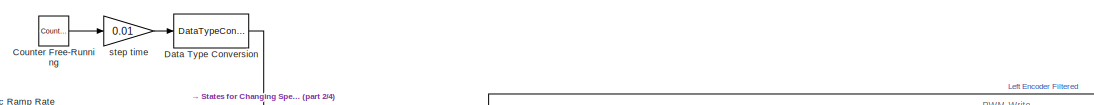
[diagram: root canvas - part 1/4, top right region]
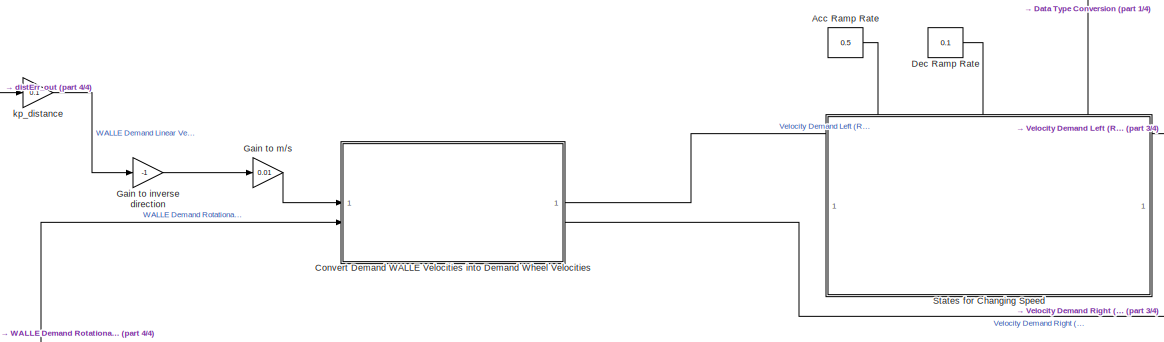
[diagram: root canvas - part 2/4, central region]
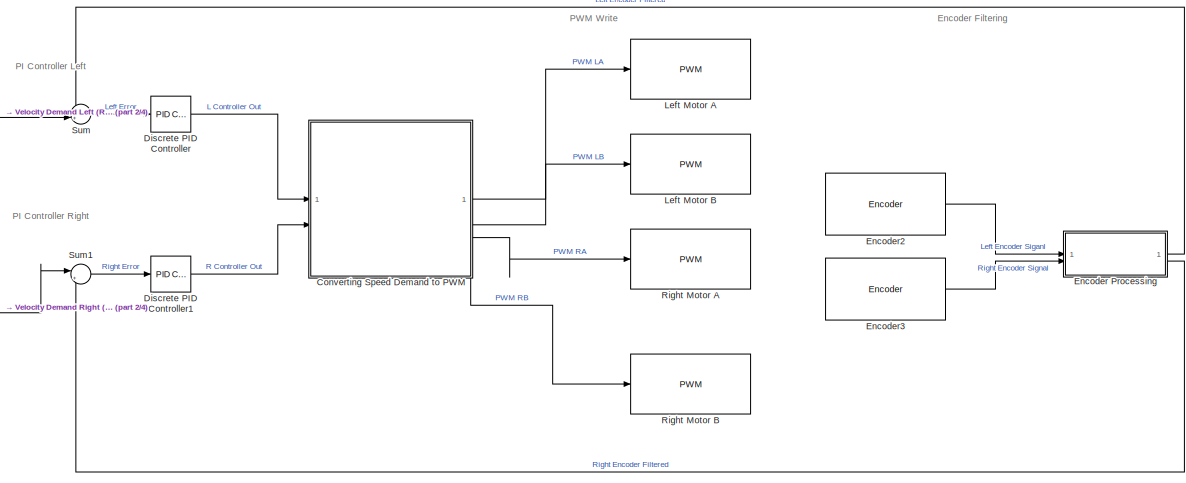
[diagram: root canvas - part 3/4, middle right region]
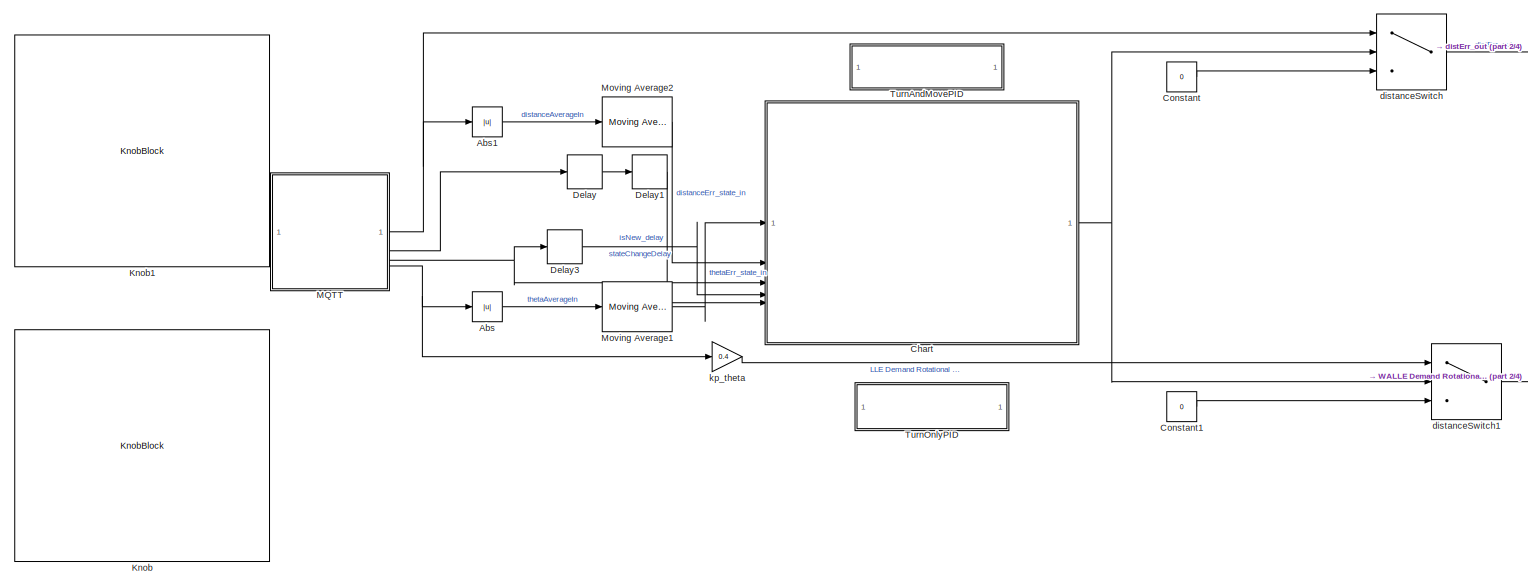
[diagram: root canvas - part 4/4, left side, full height]
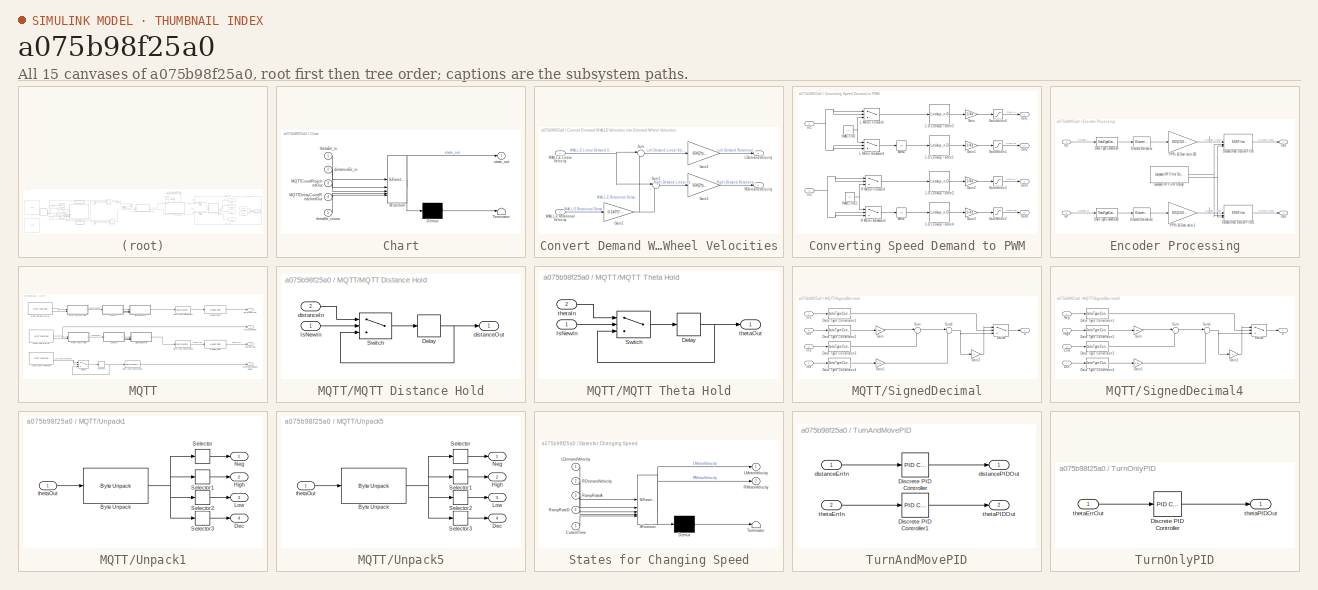
[diagram: thumbnail index - all 15 canvases of the model, root first then tree order]
MODEL slx_a075b98f25a0
KIND model
CONFIG AbsTol = auto
CONFIG EnableMultiTasking = on
CONFIG FixedStep = 0.01
CONFIG MaxStep = auto
CONFIG MinStep = auto
CONFIG RelTol = 1e-3
CONFIG SampleTimeConstraint = Unconstrained
CONFIG SolverName = FixedStepDiscrete
CONFIG StartTime = 0.0
CONFIG StopTime = inf
WORKSPACE source: mxarray member
WORKSPACE kp = 1
BLOCK [Abs] Abs
  SaturateOnIntegerOverflow = off
BLOCK [Abs] Abs1
  SaturateOnIntegerOverflow = off
BLOCK [Constant] Acc Ramp Rate
  OutDataTypeStr = single
  Value = 0.5
BLOCK [SubSystem] Chart
  ErrorFcn = Stateflow.Translate.translate
  PermitHierarchicalResolution = ExplicitOnly
  PortSchema = {"entries":[{"content":{"sides":[{"content":{"connectorIds":["In2","In5","In4","In3","In1"]},"type":"ConnectorPlacement.EquallySpacedRectSide","uuid":"3dab0a91-9335-4990-9001-e160d82c945d"},{"content":{"connectorIds":["Out1"],"side":"RIGHT"},"type":"ConnectorPlacement.EquallySpacedRectSide","uuid":"b7b74537-0e0f-4d24-ad6a-0417436d6279"},{"content":{"side":"TOP"},"type":"ConnectorPlacement.EquallyS...<+246ch>
  SFBlockType = Chart
  TreatAsAtomicUnit = on
BLOCK [Demux] Chart/ Demux 
  Outputs = 1
BLOCK [S-Function] Chart/ SFunction 
  EnableBusSupport = on
  FunctionName = sf_sfun
  PortCounts = [5 2]
  SFcnIsStateOwnerBlock = off
  SFunctionDeploymentMode = off
  Tag = Stateflow S-Function 1
BLOCK [Terminator] Chart/ Terminator 
BLOCK [Inport] Chart/MQTTCoordReachedOut
  Port = 3
BLOCK [Inport] Chart/MQTTDelayCoordReachedOut
  Port = 4
BLOCK [Inport] Chart/distanceErr_in
  Port = 2
BLOCK [Outport] Chart/state_out
BLOCK [Inport] Chart/thetaErr_in
BLOCK [Inport] Chart/thetaErr_isnew
  Port = 5
BLOCK [Constant] Constant
  Value = 0
BLOCK [Constant] Constant1
  Value = 0
BLOCK [SubSystem] Convert Demand WALLE Velocities into Demand Wheel Velocities
BLOCK [Gain] Convert Demand WALLE Velocities into Demand Wheel Velocities/Gain1
  Gain = 0.1475*pi/360
BLOCK [Gain] Convert Demand WALLE Velocities into Demand Wheel Velocities/Gain2
  Gain = 60/(2*pi*0.037)
BLOCK [Gain] Convert Demand WALLE Velocities into Demand Wheel Velocities/Gain3
  Gain = 60/(2*pi*0.037)
BLOCK [Outport] Convert Demand WALLE Velocities into Demand Wheel Velocities/LDemandVelocity
BLOCK [Outport] Convert Demand WALLE Velocities into Demand Wheel Velocities/RDemandVelocity
  Port = 2
BLOCK [Sum] Convert Demand WALLE Velocities into Demand Wheel Velocities/Sum
  Inputs = |+-
  OutDataTypeStr = single
BLOCK [Sum] Convert Demand WALLE Velocities into Demand Wheel Velocities/Sum1
  Inputs = |++
  OutDataTypeStr = single
BLOCK [Inport] Convert Demand WALLE Velocities into Demand Wheel Velocities/WALL-E Linear Velocity
BLOCK [Inport] Convert Demand WALLE Velocities into Demand Wheel Velocities/WALL-E Rotational Velocity
  Port = 2
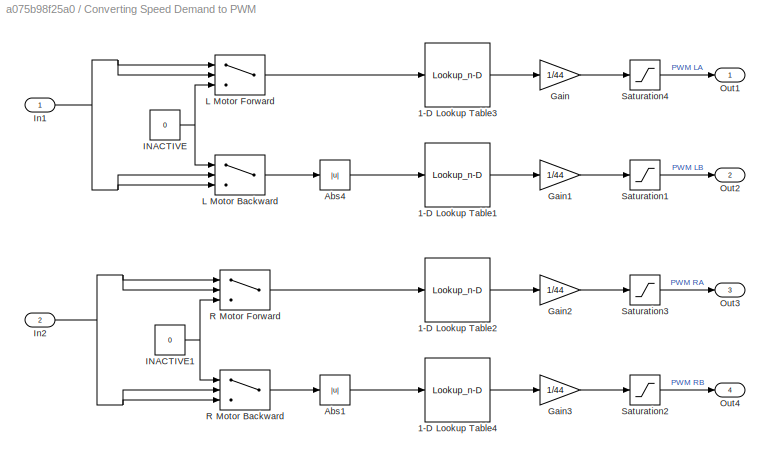
BLOCK [SubSystem] Converting Speed Demand to PWM
BLOCK [Lookup_n-D] Converting Speed Demand to PWM/1-D Lookup Table1
  BreakpointsForDimension1 = [0 2.1000000000000001 3.7000000000000002 5 10 15 20 25 30 35 40]
  InputPortMap = u0
  InternalRulePriority = Speed
  NumberOfTableDimensions = 1
  RndMeth = Simplest
  Table = [0 0 3.7000000000000002 3.7999999999999998 5 6 7 8 9 12 25]
BLOCK [Lookup_n-D] Converting Speed Demand to PWM/1-D Lookup Table2
  BreakpointsForDimension1 = [0 2.1000000000000001 3.7000000000000002 5 10 15 20 25 30 35 40]
  InputPortMap = u0
  InternalRulePriority = Speed
  NumberOfTableDimensions = 1
  RndMeth = Simplest
  Table = [0 0 3.7000000000000002 3.7999999999999998 5 6 7 8 9 12 25]
BLOCK [Lookup_n-D] Converting Speed Demand to PWM/1-D Lookup Table3
  BreakpointsForDimension1 = [0 2.1000000000000001 3.7000000000000002 5 10 15 20 25 30 35 40]
  InputPortMap = u0
  InternalRulePriority = Speed
  NumberOfTableDimensions = 1
  RndMeth = Simplest
  Table = [0 0 3.7000000000000002 3.7999999999999998 5 6 7 8 9 12 25]
BLOCK [Lookup_n-D] Converting Speed Demand to PWM/1-D Lookup Table4
  BreakpointsForDimension1 = [0 2.1000000000000001 3.7000000000000002 5 10 15 20 25 30 35 40]
  InputPortMap = u0
  InternalRulePriority = Speed
  NumberOfTableDimensions = 1
  RndMeth = Simplest
  Table = [0 0 3.7000000000000002 3.7999999999999998 5 6 7 8 9 12 25]
BLOCK [Abs] Converting Speed Demand to PWM/Abs1
  SaturateOnIntegerOverflow = off
BLOCK [Abs] Converting Speed Demand to PWM/Abs4
  SaturateOnIntegerOverflow = off
BLOCK [Gain] Converting Speed Demand to PWM/Gain
  Gain = 1/44
BLOCK [Gain] Converting Speed Demand to PWM/Gain1
  Gain = 1/44
BLOCK [Gain] Converting Speed Demand to PWM/Gain2
  Gain = 1/44
BLOCK [Gain] Converting Speed Demand to PWM/Gain3
  Gain = 1/44
BLOCK [Constant] Converting Speed Demand to PWM/INACTIVE
  Value = 0
BLOCK [Constant] Converting Speed Demand to PWM/INACTIVE1
  Value = 0
BLOCK [Inport] Converting Speed Demand to PWM/In1
BLOCK [Inport] Converting Speed Demand to PWM/In2
  Port = 2
BLOCK [Switch] Converting Speed Demand to PWM/L Motor Backward
  Criteria = u2 > Threshold
  InputSameDT = off
  SaturateOnIntegerOverflow = off
BLOCK [Switch] Converting Speed Demand to PWM/L Motor Forward
  Criteria = u2 > Threshold
  InputSameDT = off
  SaturateOnIntegerOverflow = off
BLOCK [Outport] Converting Speed Demand to PWM/Out1
BLOCK [Outport] Converting Speed Demand to PWM/Out2
  Port = 2
BLOCK [Outport] Converting Speed Demand to PWM/Out3
  Port = 3
BLOCK [Outport] Converting Speed Demand to PWM/Out4
  Port = 4
BLOCK [Switch] Converting Speed Demand to PWM/R Motor Backward
  Criteria = u2 > Threshold
  InputSameDT = off
  SaturateOnIntegerOverflow = off
BLOCK [Switch] Converting Speed Demand to PWM/R Motor Forward
  Criteria = u2 > Threshold
  InputSameDT = off
  SaturateOnIntegerOverflow = off
BLOCK [Saturate] Converting Speed Demand to PWM/Saturation1
  LowerLimit = 0
  UpperLimit = 1
BLOCK [Saturate] Converting Speed Demand to PWM/Saturation2
  LowerLimit = 0
  UpperLimit = 1
BLOCK [Saturate] Converting Speed Demand to PWM/Saturation3
  LowerLimit = 0
  UpperLimit = 1
BLOCK [Saturate] Converting Speed Demand to PWM/Saturation4
  LowerLimit = 0
  UpperLimit = 1
BLOCK [Reference] Counter Free-Running  REF=simulink/Sources/Counter
Free-Running
  SourceBlock = simulink/Sources/Counter\nFree-Running
  SourceType = Counter Free-Running
BLOCK [DataTypeConversion] Data Type Conversion
  OutDataTypeStr = single
  RndMeth = Floor
  SaturateOnIntegerOverflow = off
BLOCK [Constant] Dec Ramp Rate
  OutDataTypeStr = single
  Value = 0.1
BLOCK [Delay] Delay
  DelayLength = 15
  InitialCondition = 0
  InputPortMap = u0
BLOCK [Delay] Delay1
  DelayLength = 15
  InitialCondition = 0
  InputPortMap = u0
BLOCK [Delay] Delay3
  DelayLength = 50
  InitialCondition = 0
  InputPortMap = u0
BLOCK [Reference] Discrete PID Controller  REF=slpidlib/PID Controller
  LibrarySourceBlock = simulink/Discrete/Discrete PID Controller
  SourceBlock = slpidlib/PID Controller
  SourceType = PID 1dof
BLOCK [Reference] Discrete PID Controller1  REF=slpidlib/PID Controller
  LibrarySourceBlock = simulink/Discrete/Discrete PID Controller
  SourceBlock = slpidlib/PID Controller
  SourceType = PID 1dof
BLOCK [SubSystem] Encoder Processing
  NameLocation = right
BLOCK [DataTypeConversion] Encoder Processing/Data Type Conversion
  OutDataTypeStr = single
  RndMeth = Floor
  SaturateOnIntegerOverflow = off
BLOCK [DataTypeConversion] Encoder Processing/Data Type Conversion1
  OutDataTypeStr = single
  RndMeth = Floor
  SaturateOnIntegerOverflow = off
BLOCK [Reference] Encoder Processing/Discrete Derivative  REF=simulink/Discrete/Discrete Derivative
  SourceBlock = simulink/Discrete/Discrete Derivative
  SourceType = Discrete Derivative
BLOCK [Reference] Encoder Processing/Discrete Derivative1  REF=simulink/Discrete/Discrete Derivative
  SourceBlock = simulink/Discrete/Discrete Derivative
  SourceType = Discrete Derivative
BLOCK [Inport] Encoder Processing/In1
BLOCK [Inport] Encoder Processing/In2
  Port = 2
BLOCK [Reference] Encoder Processing/Lowpass IIR Filter Design  REF=dspfiltersrcs/Lowpass IIR Filter Design
  SourceBlock = dspfiltersrcs/Lowpass IIR Filter Design
  SourceType = dsp.simulink.LowpassIIRFilterDesign
BLOCK [Outport] Encoder Processing/Out1
BLOCK [Outport] Encoder Processing/Out2
  Port = 2
BLOCK [Gain] Encoder Processing/PPR=16 Gear ratio=1
  Gain = 60/(150*16)
  OutDataTypeStr = single
BLOCK [Gain] Encoder Processing/PPR=16 Gear ratio=150
  Gain = 60/(150*16)
  OutDataTypeStr = single
BLOCK [SOSFilter] Encoder Processing/Second-Order Section Filter
  CloseFcn = dspLinkFVTool2Mask(gcbh,'close')
  CoeffSource = Input ports
  CopyFcn = ud = get_param(gcbh,'UserData');\nif isfield(ud,'fvtool')\n  ud = rmfield(ud,'fvtool');\n  set_param(gcbh,'UserData',ud);\nend\nclear ud
  DeleteFcn = dspLinkFVTool2Mask(gcbh,'close')
  Denominator = a
  InputPortMap = u0,u1,u2
  LoadFcn = dspDeleteFVToolLinkFromMask(gcbh);
  ModelCloseFcn = dspLinkFVTool2Mask(gcbh,'close')
  Numerator = b
  OutputPortMap = o0
  PostSaveFcn = dspRestoreLinkFVTool2Mask(gcbh);
  PreSaveFcn = dspUnlinkFVToolFromMask(gcbh);
BLOCK [SOSFilter] Encoder Processing/Second-Order Section Filter1
  CloseFcn = dspLinkFVTool2Mask(gcbh,'close')
  CoeffSource = Input ports
  CopyFcn = ud = get_param(gcbh,'UserData');\nif isfield(ud,'fvtool')\n  ud = rmfield(ud,'fvtool');\n  set_param(gcbh,'UserData',ud);\nend\nclear ud
  DeleteFcn = dspLinkFVTool2Mask(gcbh,'close')
  Denominator = a
  InputPortMap = u0,u1,u2
  LoadFcn = dspDeleteFVToolLinkFromMask(gcbh);
  ModelCloseFcn = dspLinkFVTool2Mask(gcbh,'close')
  Numerator = b
  OutputPortMap = o0
  PostSaveFcn = dspRestoreLinkFVTool2Mask(gcbh);
  PreSaveFcn = dspUnlinkFVToolFromMask(gcbh);
BLOCK [Reference] Encoder2  REF=raspberrypiBasiclib/Encoder
  SourceBlock = raspberrypiBasiclib/Encoder
  SourceType = codertarget.raspi.internal.RotaryEncoder
BLOCK [Reference] Encoder3  REF=raspberrypiBasiclib/Encoder
  SourceBlock = raspberrypiBasiclib/Encoder
  SourceType = codertarget.raspi.internal.RotaryEncoder
BLOCK [Gain] Gain to inverse direction
  Gain = -1
BLOCK [Gain] Gain to m//s
  Gain = 0.01
BLOCK [KnobBlock] Knob
  ScaleMax = 0.8
  ScaleMin = 0.4
  ScaleType = Log
BLOCK [KnobBlock] Knob1
  ScaleMax = 1
BLOCK [Reference] Left Motor A  REF=raspberrypiBasiclib/PWM
  SourceBlock = raspberrypiBasiclib/PWM
  SourceType = raspi.internal.PWMBlock
BLOCK [Reference] Left Motor B  REF=raspberrypiBasiclib/PWM
  SourceBlock = raspberrypiBasiclib/PWM
  SourceType = raspi.internal.PWMBlock
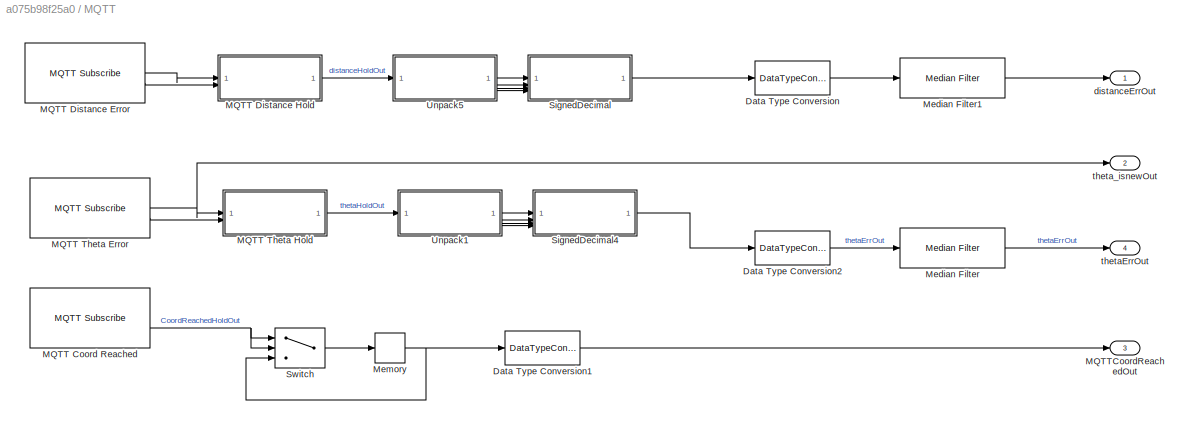
BLOCK [SubSystem] MQTT
BLOCK [DataTypeConversion] MQTT/Data Type Conversion
  OutDataTypeStr = single
  RndMeth = Floor
  SaturateOnIntegerOverflow = off
BLOCK [DataTypeConversion] MQTT/Data Type Conversion1
  OutDataTypeStr = single
  RndMeth = Floor
  SaturateOnIntegerOverflow = off
BLOCK [DataTypeConversion] MQTT/Data Type Conversion2
  OutDataTypeStr = single
  RndMeth = Floor
  SaturateOnIntegerOverflow = off
BLOCK [Reference] MQTT/MQTT Coord Reached  REF=raspberrypiIOTlib/MQTT Subscribe
  SourceBlock = raspberrypiIOTlib/MQTT Subscribe
  SourceType = codertarget.raspi.internal.RaspiMQTTSubscribe
BLOCK [Reference] MQTT/MQTT Distance Error  REF=raspberrypiIOTlib/MQTT Subscribe
  SourceBlock = raspberrypiIOTlib/MQTT Subscribe
  SourceType = codertarget.raspi.internal.RaspiMQTTSubscribe
BLOCK [SubSystem] MQTT/MQTT Distance Hold
BLOCK [Delay] MQTT/MQTT Distance Hold/Delay
  DelayLength = 20
  InitialCondition = 0
  InputPortMap = u0
BLOCK [Inport] MQTT/MQTT Distance Hold/IsNewIn
BLOCK [Switch] MQTT/MQTT Distance Hold/Switch
  Criteria = u2 > Threshold
  InputSameDT = off
  SaturateOnIntegerOverflow = off
BLOCK [Inport] MQTT/MQTT Distance Hold/distanceIn
  Port = 2
BLOCK [Outport] MQTT/MQTT Distance Hold/distanceOut
BLOCK [Reference] MQTT/MQTT Theta Error  REF=raspberrypiIOTlib/MQTT Subscribe
  SourceBlock = raspberrypiIOTlib/MQTT Subscribe
  SourceType = codertarget.raspi.internal.RaspiMQTTSubscribe
BLOCK [SubSystem] MQTT/MQTT Theta Hold
BLOCK [Delay] MQTT/MQTT Theta Hold/Delay
  DelayLength = 20
  InitialCondition = 0
  InputPortMap = u0
BLOCK [Inport] MQTT/MQTT Theta Hold/IsNewIn
BLOCK [Switch] MQTT/MQTT Theta Hold/Switch
  Criteria = u2 > Threshold
  InputSameDT = off
  SaturateOnIntegerOverflow = off
BLOCK [Inport] MQTT/MQTT Theta Hold/thetaIn
  Port = 2
BLOCK [Outport] MQTT/MQTT Theta Hold/thetaOut
BLOCK [Outport] MQTT/MQTTCoordReachedOut
  Port = 3
BLOCK [Reference] MQTT/Median Filter  REF=dspstat3/Median
Filter
  LibrarySourceBlock = dspfdesign/Median\nFilter
  SourceBlock = dspstat3/Median\nFilter
  SourceType = dsp.simulink.MedianFilter
BLOCK [Reference] MQTT/Median Filter1  REF=dspstat3/Median
Filter
  LibrarySourceBlock = dspfdesign/Median\nFilter
  SourceBlock = dspstat3/Median\nFilter
  SourceType = dsp.simulink.MedianFilter
BLOCK [Memory] MQTT/Memory
  InheritSampleTime = on
BLOCK [SubSystem] MQTT/SignedDecimal
BLOCK [DataTypeConversion] MQTT/SignedDecimal/Data Type Conversion1
  OutDataTypeStr = single
  RndMeth = Floor
  SaturateOnIntegerOverflow = off
BLOCK [DataTypeConversion] MQTT/SignedDecimal/Data Type Conversion2
  OutDataTypeStr = single
  RndMeth = Floor
  SaturateOnIntegerOverflow = off
BLOCK [DataTypeConversion] MQTT/SignedDecimal/Data Type Conversion3
  OutDataTypeStr = single
  RndMeth = Floor
  SaturateOnIntegerOverflow = off
BLOCK [DataTypeConversion] MQTT/SignedDecimal/Data Type Conversion4
  OutDataTypeStr = single
  RndMeth = Floor
  SaturateOnIntegerOverflow = off
BLOCK [Gain] MQTT/SignedDecimal/Gain
  Gain = 100
BLOCK [Gain] MQTT/SignedDecimal/Gain1
  Gain = 0.01
BLOCK [Gain] MQTT/SignedDecimal/Gain2
  Gain = -1
BLOCK [Inport] MQTT/SignedDecimal/In1
BLOCK [Inport] MQTT/SignedDecimal/In2
  Port = 2
BLOCK [Inport] MQTT/SignedDecimal/In3
  Port = 3
BLOCK [Inport] MQTT/SignedDecimal/In4
  Port = 4
BLOCK [Sum] MQTT/SignedDecimal/Sum
  Inputs = |++
BLOCK [Sum] MQTT/SignedDecimal/Sum1
  Inputs = |++
BLOCK [Switch] MQTT/SignedDecimal/Switch
  Criteria = u2 > Threshold
  InputSameDT = off
  SaturateOnIntegerOverflow = off
BLOCK [Outport] MQTT/SignedDecimal/u
BLOCK [SubSystem] MQTT/SignedDecimal4
BLOCK [DataTypeConversion] MQTT/SignedDecimal4/Data Type Conversion1
  OutDataTypeStr = single
  RndMeth = Floor
  SaturateOnIntegerOverflow = off
BLOCK [DataTypeConversion] MQTT/SignedDecimal4/Data Type Conversion2
  OutDataTypeStr = single
  RndMeth = Floor
  SaturateOnIntegerOverflow = off
BLOCK [DataTypeConversion] MQTT/SignedDecimal4/Data Type Conversion3
  OutDataTypeStr = single
  RndMeth = Floor
  SaturateOnIntegerOverflow = off
BLOCK [DataTypeConversion] MQTT/SignedDecimal4/Data Type Conversion4
  OutDataTypeStr = single
  RndMeth = Floor
  SaturateOnIntegerOverflow = off
BLOCK [Inport] MQTT/SignedDecimal4/Dec
  Port = 4
BLOCK [Gain] MQTT/SignedDecimal4/Gain
  Gain = 100
BLOCK [Gain] MQTT/SignedDecimal4/Gain1
  Gain = 0.01
BLOCK [Gain] MQTT/SignedDecimal4/Gain2
  Gain = -1
BLOCK [Inport] MQTT/SignedDecimal4/High
  Port = 2
BLOCK [Inport] MQTT/SignedDecimal4/Low
  Port = 3
BLOCK [Inport] MQTT/SignedDecimal4/Neg
BLOCK [Sum] MQTT/SignedDecimal4/Sum
  Inputs = |++
BLOCK [Sum] MQTT/SignedDecimal4/Sum1
  Inputs = |++
BLOCK [Switch] MQTT/SignedDecimal4/Switch
  Criteria = u2 > Threshold
  InputSameDT = off
  SaturateOnIntegerOverflow = off
BLOCK [Outport] MQTT/SignedDecimal4/u
BLOCK [Switch] MQTT/Switch
  Criteria = u2 ~= 0
  InputSameDT = off
  SaturateOnIntegerOverflow = off
BLOCK [SubSystem] MQTT/Unpack1
BLOCK [Reference] MQTT/Unpack1/Byte Unpack  REF=etargetslib/Byte Unpack
  SourceBlock = etargetslib/Byte Unpack
  SourceType = Byte Unpack
BLOCK [Outport] MQTT/Unpack1/Dec
  Port = 4
BLOCK [Outport] MQTT/Unpack1/High
  Port = 2
BLOCK [Outport] MQTT/Unpack1/Low
  Port = 3
BLOCK [Outport] MQTT/Unpack1/Neg
BLOCK [Selector] MQTT/Unpack1/Selector
  IndexOptions = Index vector (dialog)
  Indices = [1]
  InputPortWidth = 4
  OutputSizes = 1
BLOCK [Selector] MQTT/Unpack1/Selector1
  IndexOptions = Index vector (dialog)
  Indices = [2]
  InputPortWidth = 4
  OutputSizes = 1
BLOCK [Selector] MQTT/Unpack1/Selector2
  IndexOptions = Index vector (dialog)
  Indices = [3]
  InputPortWidth = 4
  OutputSizes = 1
BLOCK [Selector] MQTT/Unpack1/Selector3
  IndexOptions = Index vector (dialog)
  Indices = [4]
  InputPortWidth = 4
  OutputSizes = 1
BLOCK [Inport] MQTT/Unpack1/thetaOut
BLOCK [SubSystem] MQTT/Unpack5
BLOCK [Reference] MQTT/Unpack5/Byte Unpack  REF=etargetslib/Byte Unpack
  SourceBlock = etargetslib/Byte Unpack
  SourceType = Byte Unpack
BLOCK [Outport] MQTT/Unpack5/Dec
  Port = 4
BLOCK [Outport] MQTT/Unpack5/High
  Port = 2
BLOCK [Outport] MQTT/Unpack5/Low
  Port = 3
BLOCK [Outport] MQTT/Unpack5/Neg
BLOCK [Selector] MQTT/Unpack5/Selector
  IndexOptions = Index vector (dialog)
  Indices = [1]
  InputPortWidth = 4
  OutputSizes = 1
BLOCK [Selector] MQTT/Unpack5/Selector1
  IndexOptions = Index vector (dialog)
  Indices = [2]
  InputPortWidth = 4
  OutputSizes = 1
BLOCK [Selector] MQTT/Unpack5/Selector2
  IndexOptions = Index vector (dialog)
  Indices = [3]
  InputPortWidth = 4
  OutputSizes = 1
BLOCK [Selector] MQTT/Unpack5/Selector3
  IndexOptions = Index vector (dialog)
  Indices = [4]
  InputPortWidth = 4
  OutputSizes = 1
BLOCK [Inport] MQTT/Unpack5/thetaOut
BLOCK [Outport] MQTT/distanceErrOut
BLOCK [Outport] MQTT/thetaErrOut
  Port = 4
BLOCK [Outport] MQTT/theta_isnewOut
  Port = 2
BLOCK [Reference] Moving Average1  REF=eeGeneralControl/Moving Average
  LibrarySourceBlock = ee_sl_lib/General Control/Moving Average
  SourceBlock = eeGeneralControl/Moving Average
  SourceType = Moving Average
BLOCK [Reference] Moving Average2  REF=eeGeneralControl/Moving Average
  LibrarySourceBlock = ee_sl_lib/General Control/Moving Average
  SourceBlock = eeGeneralControl/Moving Average
  SourceType = Moving Average
BLOCK [Reference] Right Motor A  REF=raspberrypiBasiclib/PWM
  SourceBlock = raspberrypiBasiclib/PWM
  SourceType = raspi.internal.PWMBlock
BLOCK [Reference] Right Motor B  REF=raspberrypiBasiclib/PWM
  SourceBlock = raspberrypiBasiclib/PWM
  SourceType = raspi.internal.PWMBlock
BLOCK [SubSystem] States for Changing Speed
  ErrorFcn = Stateflow.Translate.translate
  PermitHierarchicalResolution = ExplicitOnly
  PortSchema = {"entries":[{"content":{"sides":[{"content":{"connectorIds":["In1","In2"]},"type":"ConnectorPlacement.EquallySpacedRectSide","uuid":"29566149-d476-48be-bb8d-fc9ab2ff4a55"},{"content":{"connectorIds":["Out1","Out2"],"side":"RIGHT"},"type":"ConnectorPlacement.EquallySpacedRectSide","uuid":"f908ad7a-2ba5-4204-8f83-b7448630d8f9"},{"content":{"connectorIds":["In3","In4","In5"],"side":"TOP"},"type":"Con...<+270ch>
  SFBlockType = Chart
  TreatAsAtomicUnit = on
BLOCK [Demux] States for Changing Speed/ Demux 
  Outputs = 1
BLOCK [S-Function] States for Changing Speed/ SFunction 
  EnableBusSupport = on
  FunctionName = sf_sfun
  PortCounts = [5 3]
  SFcnIsStateOwnerBlock = off
  SFunctionDeploymentMode = off
  Tag = Stateflow S-Function 3
BLOCK [Terminator] States for Changing Speed/ Terminator 
BLOCK [Inport] States for Changing Speed/CurrentTime
  Port = 5
BLOCK [Inport] States for Changing Speed/LDemandVelocity
BLOCK [Outport] States for Changing Speed/LMotorVelocity
BLOCK [Inport] States for Changing Speed/RDemandVelocity
  Port = 2
BLOCK [Outport] States for Changing Speed/RMotorVelocity
  Port = 2
BLOCK [Inport] States for Changing Speed/RampRateA
  Port = 3
BLOCK [Inport] States for Changing Speed/RampRateD
  Port = 4
BLOCK [Sum] Sum
  Inputs = -+|
BLOCK [Sum] Sum1
  Inputs = |+-
BLOCK [SubSystem] TurnAndMovePID
BLOCK [Reference] TurnAndMovePID/Discrete PID Controller  REF=slpidlib/PID Controller
  SourceBlock = slpidlib/PID Controller
  SourceType = PID 1dof
BLOCK [Reference] TurnAndMovePID/Discrete PID Controller1  REF=slpidlib/PID Controller
  SourceBlock = slpidlib/PID Controller
  SourceType = PID 1dof
BLOCK [Inport] TurnAndMovePID/distanceErrIn
BLOCK [Outport] TurnAndMovePID/distancePIDOut
BLOCK [Inport] TurnAndMovePID/thetaErrIn
  Port = 2
BLOCK [Outport] TurnAndMovePID/thetaPIDOut
  Port = 2
BLOCK [SubSystem] TurnOnlyPID
BLOCK [Reference] TurnOnlyPID/Discrete PID Controller  REF=slpidlib/PID Controller
  LibrarySourceBlock = simulink/Discrete/Discrete PID Controller
  SourceBlock = slpidlib/PID Controller
  SourceType = PID 1dof
BLOCK [Inport] TurnOnlyPID/thetaErrOut
BLOCK [Outport] TurnOnlyPID/thetaPIDOut
BLOCK [Switch] distanceSwitch
  Criteria = u2 > Threshold
  InputSameDT = off
  SaturateOnIntegerOverflow = off
BLOCK [Switch] distanceSwitch1
  Criteria = u2 ~= 0
  InputSameDT = off
  SaturateOnIntegerOverflow = off
BLOCK [Gain] kp_distance
  Gain = 0.1
BLOCK [Gain] kp_theta
  Gain = 0.4
BLOCK [Gain] step time
  Gain = 0.01
ANNOTATION (root): Encoder Filtering
ANNOTATION (root): PI Controller Left
ANNOTATION (root): PI Controller Right
ANNOTATION (root): PWM Write
LINE Abs1:1 -> Moving Average2:1
LINE Abs:1 -> Moving Average1:1
LINE Acc Ramp Rate:1 -> States for Changing Speed:3
NET Chart:1 -> distanceSwitch1:2, distanceSwitch:2
LINE Constant1:1 -> distanceSwitch1:3
LINE Constant:1 -> distanceSwitch:3
NET Convert Demand WALLE Velocities into Demand Wheel Velocities/Gain1:1 -> Convert Demand WALLE Velocities into Demand Wheel Velocities/Sum1:2, Convert Demand WALLE Velocities into Demand Wheel Velocities/Sum:2
LINE Convert Demand WALLE Velocities into Demand Wheel Velocities/Gain2:1 -> Convert Demand WALLE Velocities into Demand Wheel Velocities/LDemandVelocity:1
LINE Convert Demand WALLE Velocities into Demand Wheel Velocities/Gain3:1 -> Convert Demand WALLE Velocities into Demand Wheel Velocities/RDemandVelocity:1
LINE Convert Demand WALLE Velocities into Demand Wheel Velocities/Sum1:1 -> Convert Demand WALLE Velocities into Demand Wheel Velocities/Gain3:1
LINE Convert Demand WALLE Velocities into Demand Wheel Velocities/Sum:1 -> Convert Demand WALLE Velocities into Demand Wheel Velocities/Gain2:1
NET Convert Demand WALLE Velocities into Demand Wheel Velocities/WALL-E Linear Velocity:1 -> Convert Demand WALLE Velocities into Demand Wheel Velocities/Sum1:1, Convert Demand WALLE Velocities into Demand Wheel Velocities/Sum:1
LINE Convert Demand WALLE Velocities into Demand Wheel Velocities/WALL-E Rotational Velocity:1 -> Convert Demand WALLE Velocities into Demand Wheel Velocities/Gain1:1
LINE Convert Demand WALLE Velocities into Demand Wheel Velocities:1 -> Sum:2
LINE Convert Demand WALLE Velocities into Demand Wheel Velocities:2 -> Sum1:1
LINE Converting Speed Demand to PWM/1-D Lookup Table1:1 -> Converting Speed Demand to PWM/Gain1:1
LINE Converting Speed Demand to PWM/1-D Lookup Table2:1 -> Converting Speed Demand to PWM/Gain2:1
LINE Converting Speed Demand to PWM/1-D Lookup Table3:1 -> Converting Speed Demand to PWM/Gain:1
LINE Converting Speed Demand to PWM/1-D Lookup Table4:1 -> Converting Speed Demand to PWM/Gain3:1
LINE Converting Speed Demand to PWM/Abs1:1 -> Converting Speed Demand to PWM/1-D Lookup Table4:1
LINE Converting Speed Demand to PWM/Abs4:1 -> Converting Speed Demand to PWM/1-D Lookup Table1:1
LINE Converting Speed Demand to PWM/Gain1:1 -> Converting Speed Demand to PWM/Saturation1:1
LINE Converting Speed Demand to PWM/Gain2:1 -> Converting Speed Demand to PWM/Saturation3:1
LINE Converting Speed Demand to PWM/Gain3:1 -> Converting Speed Demand to PWM/Saturation2:1
LINE Converting Speed Demand to PWM/Gain:1 -> Converting Speed Demand to PWM/Saturation4:1
NET Converting Speed Demand to PWM/INACTIVE1:1 -> Converting Speed Demand to PWM/R Motor Backward:1, Converting Speed Demand to PWM/R Motor Forward:3
NET Converting Speed Demand to PWM/INACTIVE:1 -> Converting Speed Demand to PWM/L Motor Backward:1, Converting Speed Demand to PWM/L Motor Forward:3
NET Converting Speed Demand to PWM/In1:1 -> Converting Speed Demand to PWM/L Motor Backward:2, Converting Speed Demand to PWM/L Motor Backward:3, Converting Speed Demand to PWM/L Motor Forward:1, Converting Speed Demand to PWM/L Motor Forward:2
NET Converting Speed Demand to PWM/In2:1 -> Converting Speed Demand to PWM/R Motor Backward:2, Converting Speed Demand to PWM/R Motor Backward:3, Converting Speed Demand to PWM/R Motor Forward:1, Converting Speed Demand to PWM/R Motor Forward:2
LINE Converting Speed Demand to PWM/L Motor Backward:1 -> Converting Speed Demand to PWM/Abs4:1
LINE Converting Speed Demand to PWM/L Motor Forward:1 -> Converting Speed Demand to PWM/1-D Lookup Table3:1
LINE Converting Speed Demand to PWM/R Motor Backward:1 -> Converting Speed Demand to PWM/Abs1:1
LINE Converting Speed Demand to PWM/R Motor Forward:1 -> Converting Speed Demand to PWM/1-D Lookup Table2:1
LINE Converting Speed Demand to PWM/Saturation1:1 -> Converting Speed Demand to PWM/Out2:1
LINE Converting Speed Demand to PWM/Saturation2:1 -> Converting Speed Demand to PWM/Out4:1
LINE Converting Speed Demand to PWM/Saturation3:1 -> Converting Speed Demand to PWM/Out3:1
LINE Converting Speed Demand to PWM/Saturation4:1 -> Converting Speed Demand to PWM/Out1:1
LINE Converting Speed Demand to PWM:1 -> Left Motor A:1
LINE Converting Speed Demand to PWM:2 -> Left Motor B:1
LINE Converting Speed Demand to PWM:3 -> Right Motor A:1
LINE Converting Speed Demand to PWM:4 -> Right Motor B:1
LINE Counter Free-Running:1 -> step time:1
LINE Data Type Conversion:1 -> States for Changing Speed:5
LINE Dec Ramp Rate:1 -> States for Changing Speed:4
LINE Delay1:1 -> Chart:5
LINE Delay3:1 -> Chart:4
LINE Delay:1 -> Delay1:1
LINE Discrete PID Controller1:1 -> Converting Speed Demand to PWM:2
LINE Discrete PID Controller:1 -> Converting Speed Demand to PWM:1
LINE Encoder Processing/Data Type Conversion1:1 -> Encoder Processing/Discrete Derivative1:1
LINE Encoder Processing/Data Type Conversion:1 -> Encoder Processing/Discrete Derivative:1
LINE Encoder Processing/Discrete Derivative1:1 -> Encoder Processing/PPR=16 Gear ratio=1:1
LINE Encoder Processing/Discrete Derivative:1 -> Encoder Processing/PPR=16 Gear ratio=150:1
LINE Encoder Processing/In1:1 -> Encoder Processing/Data Type Conversion:1
LINE Encoder Processing/In2:1 -> Encoder Processing/Data Type Conversion1:1
NET Encoder Processing/Lowpass IIR Filter Design:1 -> Encoder Processing/Second-Order Section Filter1:2, Encoder Processing/Second-Order Section Filter:2
NET Encoder Processing/Lowpass IIR Filter Design:2 -> Encoder Processing/Second-Order Section Filter1:3, Encoder Processing/Second-Order Section Filter:3
LINE Encoder Processing/PPR=16 Gear ratio=150:1 -> Encoder Processing/Second-Order Section Filter:1
LINE Encoder Processing/PPR=16 Gear ratio=1:1 -> Encoder Processing/Second-Order Section Filter1:1
LINE Encoder Processing/Second-Order Section Filter1:1 -> Encoder Processing/Out2:1
LINE Encoder Processing/Second-Order Section Filter:1 -> Encoder Processing/Out1:1
LINE Encoder Processing:1 -> Sum:1
LINE Encoder Processing:2 -> Sum1:2
LINE Encoder2:1 -> Encoder Processing:1
LINE Encoder3:1 -> Encoder Processing:2
LINE Gain to inverse direction:1 -> Gain to m//s:1
LINE Gain to m//s:1 -> Convert Demand WALLE Velocities into Demand Wheel Velocities:1
LINE MQTT/Data Type Conversion1:1 -> MQTT/MQTTCoordReachedOut:1
LINE MQTT/Data Type Conversion2:1 -> MQTT/Median Filter:1
LINE MQTT/Data Type Conversion:1 -> MQTT/Median Filter1:1
NET MQTT/MQTT Coord Reached:2 -> MQTT/Switch:1, MQTT/Switch:2
LINE MQTT/MQTT Distance Error:1 -> MQTT/MQTT Distance Hold:1
LINE MQTT/MQTT Distance Error:2 -> MQTT/MQTT Distance Hold:2
NET MQTT/MQTT Distance Hold/Delay:1 -> MQTT/MQTT Distance Hold/Switch:3, MQTT/MQTT Distance Hold/distanceOut:1
LINE MQTT/MQTT Distance Hold/IsNewIn:1 -> MQTT/MQTT Distance Hold/Switch:2
LINE MQTT/MQTT Distance Hold/Switch:1 -> MQTT/MQTT Distance Hold/Delay:1
LINE MQTT/MQTT Distance Hold/distanceIn:1 -> MQTT/MQTT Distance Hold/Switch:1
LINE MQTT/MQTT Distance Hold:1 -> MQTT/Unpack5:1
NET MQTT/MQTT Theta Error:1 -> MQTT/MQTT Theta Hold:1, MQTT/theta_isnewOut:1
LINE MQTT/MQTT Theta Error:2 -> MQTT/MQTT Theta Hold:2
NET MQTT/MQTT Theta Hold/Delay:1 -> MQTT/MQTT Theta Hold/Switch:3, MQTT/MQTT Theta Hold/thetaOut:1
LINE MQTT/MQTT Theta Hold/IsNewIn:1 -> MQTT/MQTT Theta Hold/Switch:2
LINE MQTT/MQTT Theta Hold/Switch:1 -> MQTT/MQTT Theta Hold/Delay:1
LINE MQTT/MQTT Theta Hold/thetaIn:1 -> MQTT/MQTT Theta Hold/Switch:1
LINE MQTT/MQTT Theta Hold:1 -> MQTT/Unpack1:1
LINE MQTT/Median Filter1:1 -> MQTT/distanceErrOut:1
LINE MQTT/Median Filter:1 -> MQTT/thetaErrOut:1
NET MQTT/Memory:1 -> MQTT/Data Type Conversion1:1, MQTT/Switch:3
LINE MQTT/SignedDecimal/Data Type Conversion1:1 -> MQTT/SignedDecimal/Switch:2
LINE MQTT/SignedDecimal/Data Type Conversion2:1 -> MQTT/SignedDecimal/Gain:1
LINE MQTT/SignedDecimal/Data Type Conversion3:1 -> MQTT/SignedDecimal/Sum:2
LINE MQTT/SignedDecimal/Data Type Conversion4:1 -> MQTT/SignedDecimal/Gain1:1
LINE MQTT/SignedDecimal/Gain1:1 -> MQTT/SignedDecimal/Sum1:2
LINE MQTT/SignedDecimal/Gain2:1 -> MQTT/SignedDecimal/Switch:1
LINE MQTT/SignedDecimal/Gain:1 -> MQTT/SignedDecimal/Sum:1
LINE MQTT/SignedDecimal/In1:1 -> MQTT/SignedDecimal/Data Type Conversion1:1
LINE MQTT/SignedDecimal/In2:1 -> MQTT/SignedDecimal/Data Type Conversion2:1
LINE MQTT/SignedDecimal/In3:1 -> MQTT/SignedDecimal/Data Type Conversion3:1
LINE MQTT/SignedDecimal/In4:1 -> MQTT/SignedDecimal/Data Type Conversion4:1
NET MQTT/SignedDecimal/Sum1:1 -> MQTT/SignedDecimal/Gain2:1, MQTT/SignedDecimal/Switch:3
LINE MQTT/SignedDecimal/Sum:1 -> MQTT/SignedDecimal/Sum1:1
LINE MQTT/SignedDecimal/Switch:1 -> MQTT/SignedDecimal/u:1
LINE MQTT/SignedDecimal4/Data Type Conversion1:1 -> MQTT/SignedDecimal4/Switch:2
LINE MQTT/SignedDecimal4/Data Type Conversion2:1 -> MQTT/SignedDecimal4/Gain:1
LINE MQTT/SignedDecimal4/Data Type Conversion3:1 -> MQTT/SignedDecimal4/Sum:2
LINE MQTT/SignedDecimal4/Data Type Conversion4:1 -> MQTT/SignedDecimal4/Gain1:1
LINE MQTT/SignedDecimal4/Dec:1 -> MQTT/SignedDecimal4/Data Type Conversion4:1
LINE MQTT/SignedDecimal4/Gain1:1 -> MQTT/SignedDecimal4/Sum1:2
LINE MQTT/SignedDecimal4/Gain2:1 -> MQTT/SignedDecimal4/Switch:1
LINE MQTT/SignedDecimal4/Gain:1 -> MQTT/SignedDecimal4/Sum:1
LINE MQTT/SignedDecimal4/High:1 -> MQTT/SignedDecimal4/Data Type Conversion2:1
LINE MQTT/SignedDecimal4/Low:1 -> MQTT/SignedDecimal4/Data Type Conversion3:1
LINE MQTT/SignedDecimal4/Neg:1 -> MQTT/SignedDecimal4/Data Type Conversion1:1
NET MQTT/SignedDecimal4/Sum1:1 -> MQTT/SignedDecimal4/Gain2:1, MQTT/SignedDecimal4/Switch:3
LINE MQTT/SignedDecimal4/Sum:1 -> MQTT/SignedDecimal4/Sum1:1
LINE MQTT/SignedDecimal4/Switch:1 -> MQTT/SignedDecimal4/u:1
LINE MQTT/SignedDecimal4:1 -> MQTT/Data Type Conversion2:1
LINE MQTT/SignedDecimal:1 -> MQTT/Data Type Conversion:1
LINE MQTT/Switch:1 -> MQTT/Memory:1
NET MQTT/Unpack1/Byte Unpack:1 -> MQTT/Unpack1/Selector1:1, MQTT/Unpack1/Selector2:1, MQTT/Unpack1/Selector3:1, MQTT/Unpack1/Selector:1
LINE MQTT/Unpack1/Selector1:1 -> MQTT/Unpack1/High:1
LINE MQTT/Unpack1/Selector2:1 -> MQTT/Unpack1/Low:1
LINE MQTT/Unpack1/Selector3:1 -> MQTT/Unpack1/Dec:1
LINE MQTT/Unpack1/Selector:1 -> MQTT/Unpack1/Neg:1
LINE MQTT/Unpack1/thetaOut:1 -> MQTT/Unpack1/Byte Unpack:1
LINE MQTT/Unpack1:1 -> MQTT/SignedDecimal4:1
LINE MQTT/Unpack1:2 -> MQTT/SignedDecimal4:2
LINE MQTT/Unpack1:3 -> MQTT/SignedDecimal4:3
LINE MQTT/Unpack1:4 -> MQTT/SignedDecimal4:4
NET MQTT/Unpack5/Byte Unpack:1 -> MQTT/Unpack5/Selector1:1, MQTT/Unpack5/Selector2:1, MQTT/Unpack5/Selector3:1, MQTT/Unpack5/Selector:1
LINE MQTT/Unpack5/Selector1:1 -> MQTT/Unpack5/High:1
LINE MQTT/Unpack5/Selector2:1 -> MQTT/Unpack5/Low:1
LINE MQTT/Unpack5/Selector3:1 -> MQTT/Unpack5/Dec:1
LINE MQTT/Unpack5/Selector:1 -> MQTT/Unpack5/Neg:1
LINE MQTT/Unpack5/thetaOut:1 -> MQTT/Unpack5/Byte Unpack:1
LINE MQTT/Unpack5:1 -> MQTT/SignedDecimal:1
LINE MQTT/Unpack5:2 -> MQTT/SignedDecimal:2
LINE MQTT/Unpack5:3 -> MQTT/SignedDecimal:3
LINE MQTT/Unpack5:4 -> MQTT/SignedDecimal:4
NET MQTT:1 -> Abs1:1, distanceSwitch:1
LINE MQTT:2 -> Delay:1
NET MQTT:3 -> Chart:3, Delay3:1
NET MQTT:4 -> Abs:1, kp_theta:1
LINE Moving Average1:1 -> Chart:1
LINE Moving Average2:1 -> Chart:2
LINE Sum1:1 -> Discrete PID Controller1:1
LINE Sum:1 -> Discrete PID Controller:1
LINE TurnAndMovePID/Discrete PID Controller1:1 -> TurnAndMovePID/thetaPIDOut:1
LINE TurnAndMovePID/Discrete PID Controller:1 -> TurnAndMovePID/distancePIDOut:1
LINE TurnAndMovePID/distanceErrIn:1 -> TurnAndMovePID/Discrete PID Controller:1
LINE TurnAndMovePID/thetaErrIn:1 -> TurnAndMovePID/Discrete PID Controller1:1
LINE TurnOnlyPID/Discrete PID Controller:1 -> TurnOnlyPID/thetaPIDOut:1
LINE TurnOnlyPID/thetaErrOut:1 -> TurnOnlyPID/Discrete PID Controller:1
LINE distanceSwitch1:1 -> Convert Demand WALLE Velocities into Demand Wheel Velocities:2
LINE distanceSwitch:1 -> kp_distance:1
LINE kp_distance:1 -> Gain to inverse direction:1
LINE kp_theta:1 -> distanceSwitch1:1
LINE step time:1 -> Data Type Conversion:1
note: NET lines group one-source signal fan-out (src -> all destinations, sorted); 1:1 wires keep LINE
CHART Chart states=7 transitions=5
  STATE_LABEL 'TurnOnly\nen: state_out = -1'
  STATE_LABEL 'TurnAndMove\nen: state_out = 1'
  STATE_LABEL 'Idle\nen: state_out = 0'
  STATE_LABEL 'Turning and going forwards'
  STATE_LABEL 'Turning only here'
  STATE_LABEL 'AtTarget\nen: state_out = -2'
  STATE_LABEL 'Turning only here'
CHART States for Changing Speed states=5 transitions=8
  STATE_LABEL 'RampedVelocity = stepToRamp(CurrentTime, StepTime, TargetVelocity, CurrentVelocity, RampRate)'
  STATE_LABEL 'SCRIPT:\nfunction RampedVelocity = stepToRamp(CurrentTime, StepTime, TargetVelocity, CurrentVelocity, RampRate)\n    % Convert everything to single precision for consistency\n    CurrentVelocity = single(CurrentVelocity);\n    TargetVelocity = single(TargetVelocity);\n    RampRate = single(RampRate);\n    CurrentTime = single(CurrentTime);\n    StepTime = single(StepTime);\n    \n    % Calculate the remain...<+1954ch>'
  STATE_LABEL 'Idle\nen:\nLMotorVelocity = 0;\nRMotorVelocity = 0;\nStepTime = single(0);'
  STATE_LABEL 'Accelerating\ndu:\nLMotorVelocity = stepToRamp(CurrentTime, StepTime, LDemandVelocity, LMotorVelocity, RampRateA);\nRMotorVelocity = stepToRamp(CurrentTime, StepTime, RDemandVelocity, RMotorVelocity, RampRateA);\n'
  STATE_LABEL 'Decelerating\ndu:\nLMotorVelocity = stepToRamp(CurrentTime, StepTime, LDemandVelocity, LMotorVelocity, RampRateD);\nRMotorVelocity = stepToRamp(CurrentTime, StepTime, RDemandVelocity, RMotorVelocity, RampRateD);'
  STATE_LABEL 'Cruising\nen:\nLMotorVelocity = LDemandVelocity;\nRMotorVelocity = RDemandVelocity;\n'
CHART  states=0 transitions=0
CHART  states=0 transitions=0
